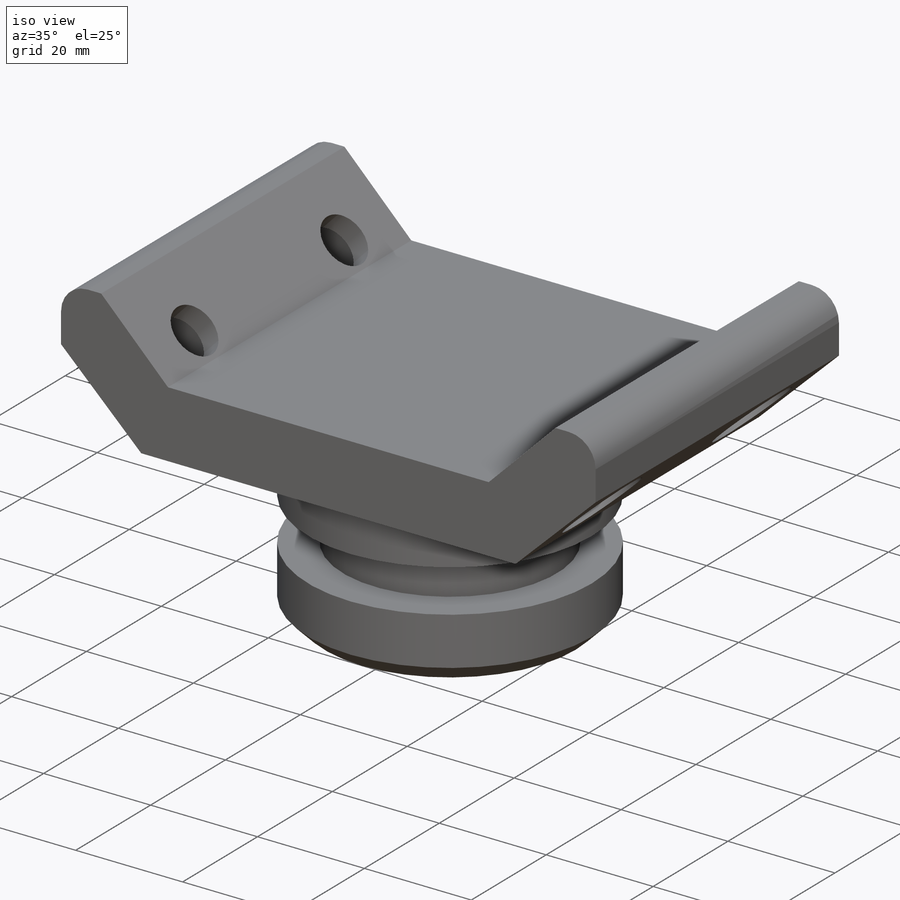
[diagram: iso view]
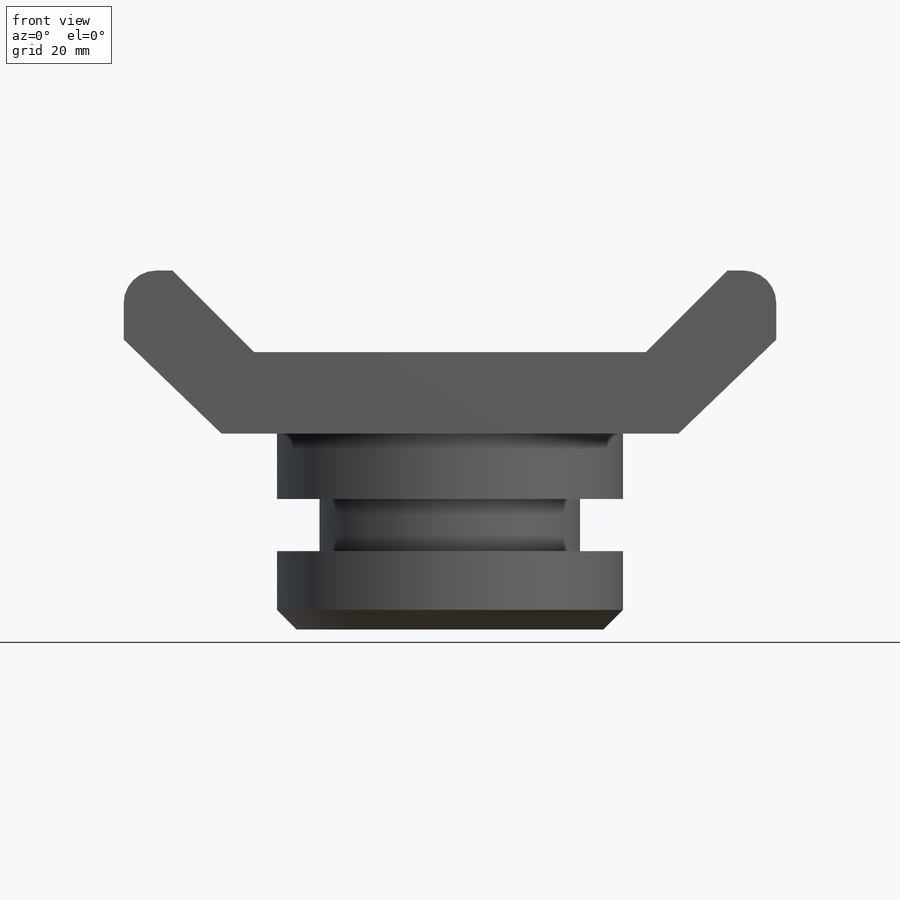
[diagram: front view]
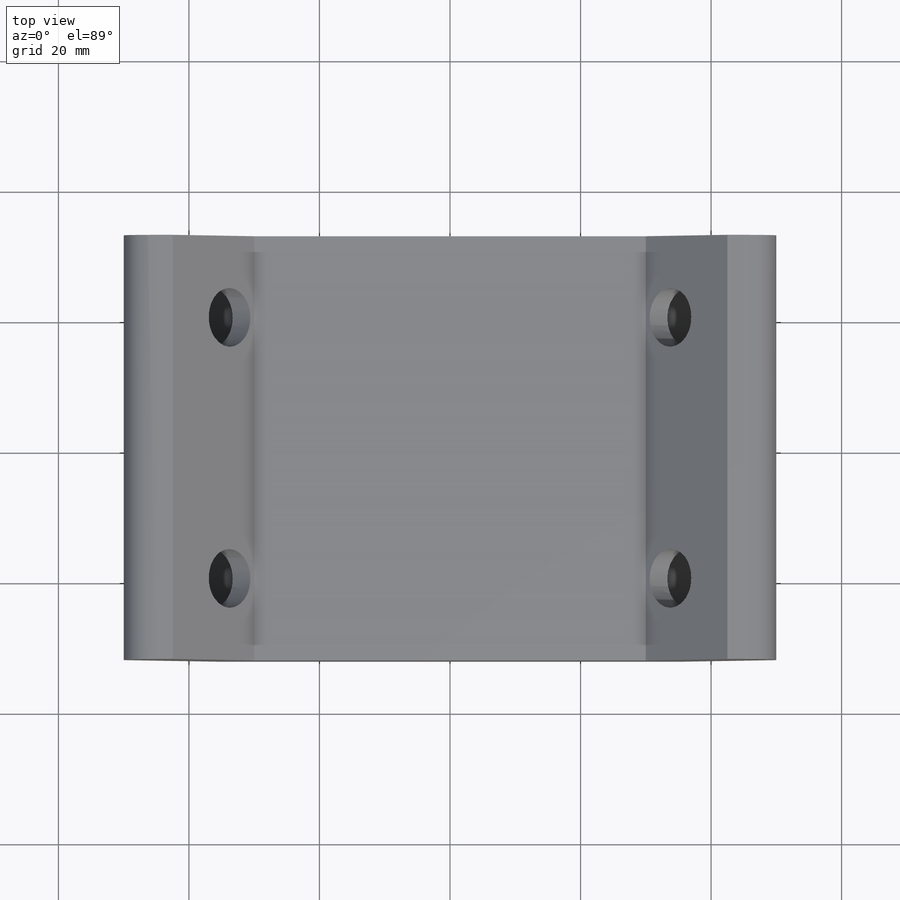
[diagram: top view]
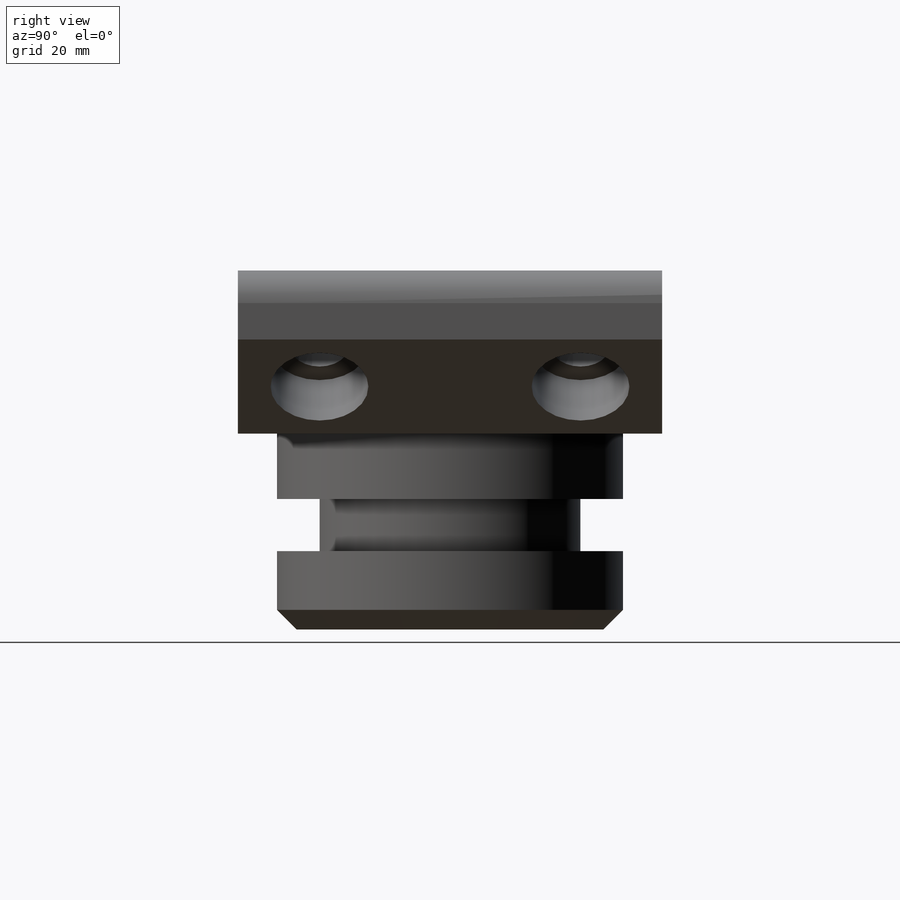
[diagram: right view]
SOLIDWORKS PART (.sldprt)
format: sldprt  version: not decoded by parser v0  size: 252,928 bytes
history: native  units: mm
features: sketch x5, plane x3, material x1, extrude x1, revolve x1, hole x1, mirror x1, fillet x1 (+10 scaffold rows collapsed)
feature tree (24):
  scaffold x10  (default folders/planes/origin — collapsed)
  material  "Material <not specified>"
  plane  "Alzado"
  plane  "Planta"
  plane  "Vista lateral"
  sketch  "Sketch1"  dims[D1=25.0mm D2=15.0mm D3=12.5mm D4=12.5mm D5=30.0mm D6=50.0mm]
  extrude  "Boss-Extrude1"  Depth=65mm
  sketch  "Sketch2"  dims[D1=30.0mm D2=8.0mm D3=10.0mm D4=26.5mm D5=20.0mm]
  revolve  "Revolve1"  Angle=360deg
  sketch  "Sketch3"  dims[D1=40.0mm]
  hole  "CBORE for M8 Hex Socket Head Cap Screw1"  Diameter=9mm Depth=76.937543mm
  sketch  "Sketch5"
  sketch  "Sketch4"  dims[hole-wizard template sketch: 41 standard entries collapsed; hole parameters kept: c12.Thru Hole Dia.=9.0mm c12.Thru Hole Depth=~76.937543mm c12.C'Bore Dia.=15.0mm c12.C'Bore Depth=8.6mm]
  mirror  "Mirror1"
  fillet  "Fillet1"  Radius=5mm
decode coverage: 8 of 10 modeling features carry decoded parameters
note: ~ marks probable driven/reference dimensions
note: suppression state not decoded; provenance and decode notes live in map.json
